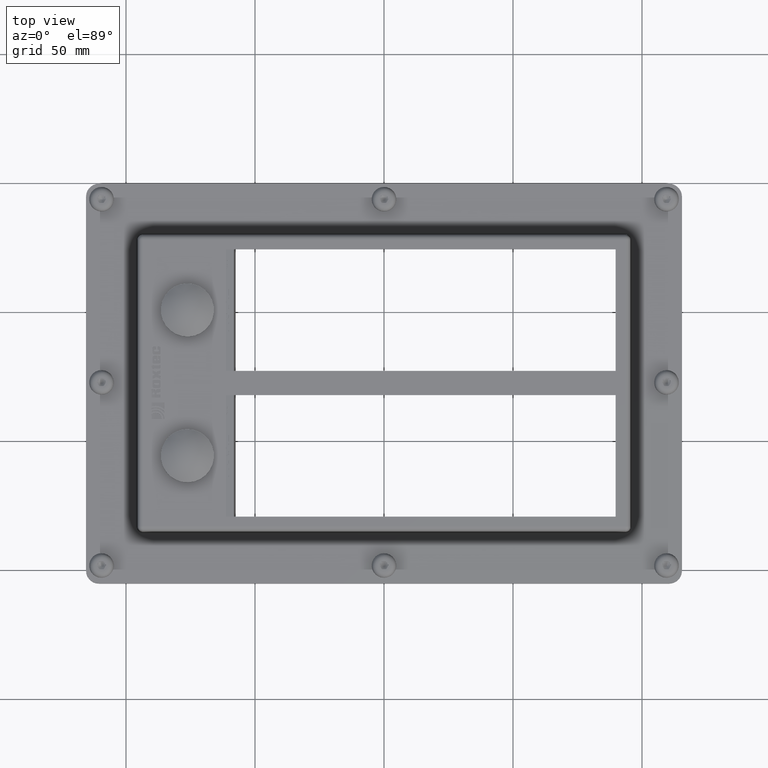
[diagram: clean part render]
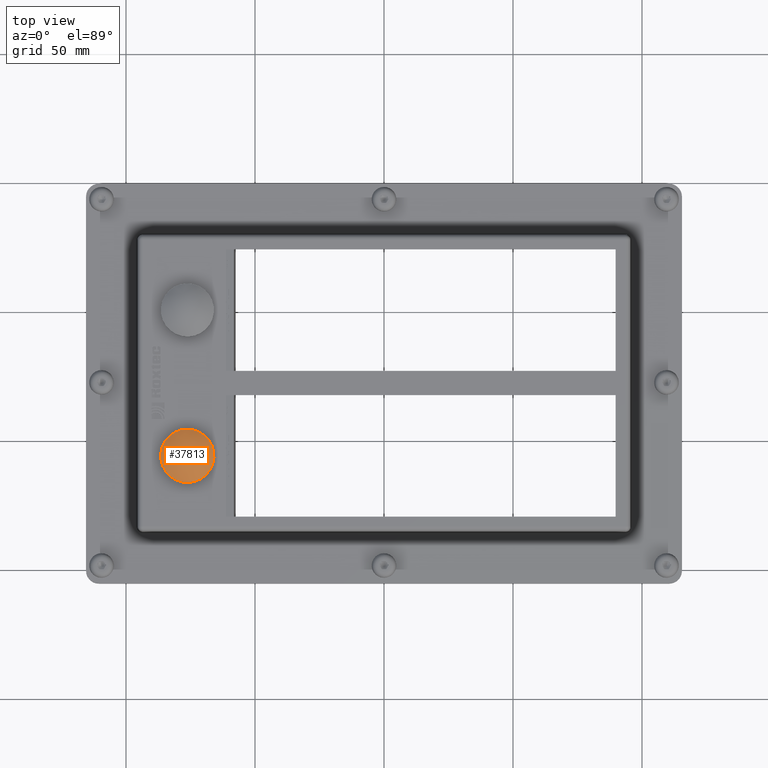
[diagram: same view with one face highlighted and labeled with its STEP entity id]
A machine part, top view. The second image highlights one B-rep face of the part: STEP entity #37813.
In plain terms, the highlighted spherical surface has radius 16 mm.
Its self-contained STEP definition (entity closure, byte-faithful):
#37797=CARTESIAN_POINT('',(-76.220740230695753,-56.5,21.880000000000003));
#37798=DIRECTION('',(0.96232556119848,0.271899823949981,0.0));
#37799=DIRECTION('',(0.0,0.0,-1.0));
#37800=AXIS2_PLACEMENT_3D('',#37797,#37798,#37799);
#37801=SPHERICAL_SURFACE('',#37800,16.000000000000004);
#37802=CARTESIAN_POINT('',(-79.028105912979299,-46.563988580625697,34.102699169986963));
#37803=VERTEX_POINT('',#37802);
#37804=CARTESIAN_POINT('',(-76.220740230695753,-56.5,34.102699169986963));
#37805=DIRECTION('',(0.0,0.0,-1.0));
#37806=DIRECTION('',(-0.271899823949981,0.96232556119848,0.0));
#37807=AXIS2_PLACEMENT_3D('',#37804,#37805,#37806);
#37808=CIRCLE('',#37807,10.325000000000003);
#37809=EDGE_CURVE('',#37803,#37803,#37808,.T.);
#37810=ORIENTED_EDGE('',*,*,#37809,.F.);
#37811=EDGE_LOOP('',(#37810));
#37812=FACE_OUTER_BOUND('',#37811,.T.);
#37813=ADVANCED_FACE('',(#37812),#37801,.T.);